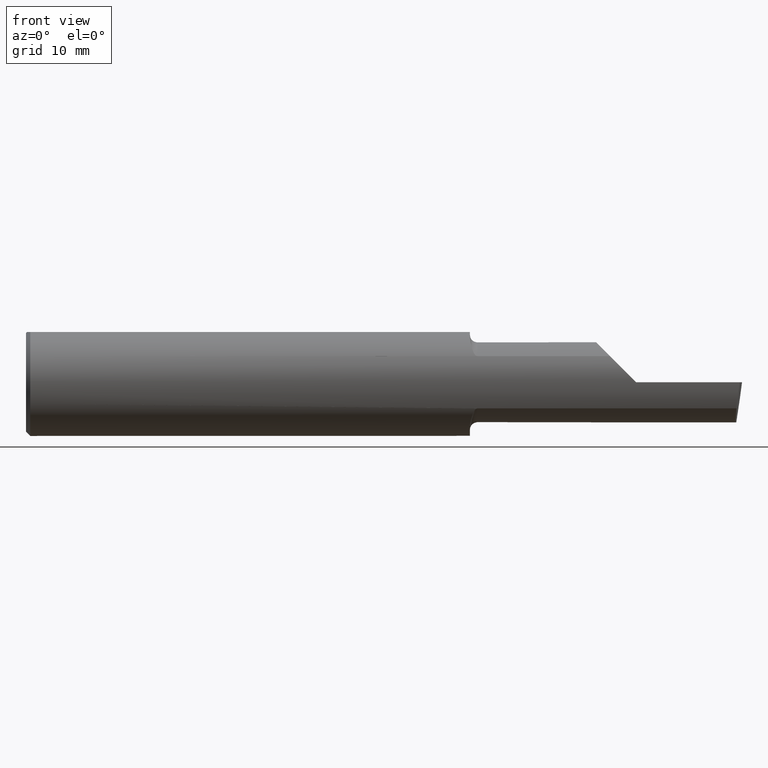
[diagram: clean part render]
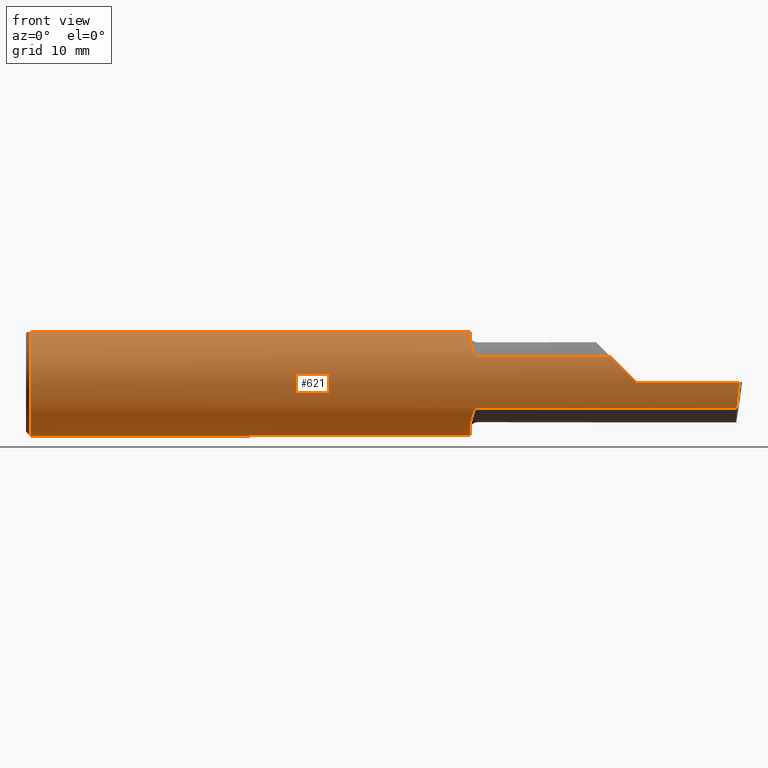
[diagram: same view with one face highlighted and labeled with its STEP entity id]
A machine part, front view. The second image highlights one B-rep face of the part: STEP entity #621.
In plain terms, the highlighted cylindrical surface (partial cylindrical patch) has radius 4.7587 mm, axis along (-1, -0, -0).
Its self-contained STEP definition (entity closure, byte-faithful):
#6 = DIRECTION ( 'NONE',  ( -1.000000000000000000, -0.000000000000000000, -0.000000000000000000 ) ) ;
#11 = CARTESIAN_POINT ( 'NONE',  ( 1.550384441902395327, -0.1115101367984837610, -0.1507946173152225067 ) ) ;
#18 = CARTESIAN_POINT ( 'NONE',  ( 2.038695632261437130, -0.1635956445993029529, 0.09130436773856188959 ) ) ;
#22 = CARTESIAN_POINT ( 'NONE',  ( 0.000000000000000000, 0.06597272163553663527, 0.1753499999999999781 ) ) ;
#24 = CARTESIAN_POINT ( 'NONE',  ( 1.550383728133730266, -0.1114837668894149980, 0.1508119329971097933 ) ) ;
#32 = CIRCLE ( 'NONE', #151, 0.1873499999999999888 ) ;
#33 = AXIS2_PLACEMENT_3D ( 'NONE', #329, #521, #126 ) ;
#35 =( BOUNDED_CURVE ( )  B_SPLINE_CURVE ( 3, ( #502, #418, #177, #459 ),
 .UNSPECIFIED., .F., .T. ) 
 B_SPLINE_CURVE_WITH_KNOTS ( ( 4, 4 ),
 ( 0.8516985021657653698, 1.360746882515200484 ),
 .UNSPECIFIED. ) 
 CURVE ( )  GEOMETRIC_REPRESENTATION_ITEM ( )  RATIONAL_B_SPLINE_CURVE ( ( 1.000000000000000000, 0.9785221379938656705, 0.9785221379938656705, 1.000000000000000000 ) ) 
 REPRESENTATION_ITEM ( '' )  );
#37 = CARTESIAN_POINT ( 'NONE',  ( 1.563764108097883687, -0.1573043405450770260, 0.1018329020719638545 ) ) ;
#45 = CIRCLE ( 'NONE', #435, 0.1873499999999999888 ) ;
#48 = EDGE_CURVE ( 'NONE', #351, #124, #56, .T. ) ;
#51 = EDGE_CURVE ( 'NONE', #379, #128, #35, .T. ) ;
#54 = AXIS2_PLACEMENT_3D ( 'NONE', #154, #302, #626 ) ;
#56 =( BOUNDED_CURVE ( )  B_SPLINE_CURVE ( 3, ( #175, #504, #545, #224 ),
 .UNSPECIFIED., .F., .T. ) 
 B_SPLINE_CURVE_WITH_KNOTS ( ( 4, 4 ),
 ( 4.712388980384689674, 5.221437360734125122 ),
 .UNSPECIFIED. ) 
 CURVE ( )  GEOMETRIC_REPRESENTATION_ITEM ( )  RATIONAL_B_SPLINE_CURVE ( ( 1.000000000000000000, 0.9785221379938656705, 0.9785221379938656705, 1.000000000000000000 ) ) 
 REPRESENTATION_ITEM ( '' )  );
#63 = CARTESIAN_POINT ( 'NONE',  ( 1.553041727949557638, -0.1311116946065050415, -0.1340922927843371804 ) ) ;
#67 = DIRECTION ( 'NONE',  ( 0.000000000000000000, 1.000000000000000000, 0.000000000000000000 ) ) ;
#69 = CARTESIAN_POINT ( 'NONE',  ( 1.567975941902154391, -0.1612443294219079171, -0.09540922431498241596 ) ) ;
#79 = ORIENTED_EDGE ( 'NONE', *, *, #451, .T. ) ;
#80 = CARTESIAN_POINT ( 'NONE',  ( 1.570903862568969078, -0.1628809688430619407, 0.09258733509388515637 ) ) ;
#82 = EDGE_CURVE ( 'NONE', #374, #334, #455, .T. ) ;
#87 = CARTESIAN_POINT ( 'NONE',  ( 1.574999999999999956, -0.1635956445993029529, -0.09130436773856180632 ) ) ;
#92 = EDGE_CURVE ( 'NONE', #244, #334, #32, .T. ) ;
#101 = CARTESIAN_POINT ( 'NONE',  ( 1.574999999999999956, -0.1635956445993027031, 0.09130436773856204224 ) ) ;
#108 = LINE ( 'NONE', #454, #315 ) ;
#109 = EDGE_CURVE ( 'NONE', #514, #234, #462, .T. ) ;
#111 = CARTESIAN_POINT ( 'NONE',  ( 1.563743174082349752, -0.1572750258711007043, -0.1018777902325216089 ) ) ;
#118 = CARTESIAN_POINT ( 'NONE',  ( 1.572779935319434719, -0.1635956445993029529, -0.09130436773856194510 ) ) ;
#120 = CARTESIAN_POINT ( 'NONE',  ( 1.550000000000000044, -0.09715400696864107122, 0.1601908905959925078 ) ) ;
#122 = CARTESIAN_POINT ( 'NONE',  ( 0.01499999999999999424, 0.000000000000000000, 0.000000000000000000 ) ) ;
#124 = VERTEX_POINT ( 'NONE', #18 ) ;
#126 = DIRECTION ( 'NONE',  ( 0.000000000000000000, 0.000000000000000000, 1.000000000000000000 ) ) ;
#127 = CARTESIAN_POINT ( 'NONE',  ( 1.550000000000000044, -0.09715400696864107122, 0.1601908905959925078 ) ) ;
#128 = VERTEX_POINT ( 'NONE', #308 ) ;
#132 = EDGE_CURVE ( 'NONE', #514, #148, #478, .T. ) ;
#135 = CARTESIAN_POINT ( 'NONE',  ( 1.562204638458737138, -0.1550630761760522502, 0.1052254855377565412 ) ) ;
#148 = VERTEX_POINT ( 'NONE', #120 ) ;
#151 = AXIS2_PLACEMENT_3D ( 'NONE', #270, #264, #409 ) ;
#154 = CARTESIAN_POINT ( 'NONE',  ( 0.01499999999999999424, 0.000000000000000000, 0.000000000000000000 ) ) ;
#157 = ORIENTED_EDGE ( 'NONE', *, *, #132, .F. ) ;
#169 = CARTESIAN_POINT ( 'NONE',  ( 1.550000000000000044, -0.06597272163553659363, 0.1753499999999999781 ) ) ;
#173 = DIRECTION ( 'NONE',  ( 1.000000000000000000, 6.829619984160658046E-18, 0.000000000000000000 ) ) ;
#175 = CARTESIAN_POINT ( 'NONE',  ( 2.129999999999999893, -0.1873499999999999888, 1.065442715258197396E-16 ) ) ;
#177 = CARTESIAN_POINT ( 'NONE',  ( 2.487725449370724817, -0.1873500000000000443, -0.03213820089768505694 ) ) ;
#185 = ORIENTED_EDGE ( 'NONE', *, *, #617, .F. ) ;
#203 = ORIENTED_EDGE ( 'NONE', *, *, #82, .T. ) ;
#214 = CARTESIAN_POINT ( 'NONE',  ( 1.550000000000000044, -0.1045082199249679489, -0.1557306416133594495 ) ) ;
#224 = CARTESIAN_POINT ( 'NONE',  ( 2.038695632261437130, -0.1635956445993029529, 0.09130436773856188959 ) ) ;
#225 = VECTOR ( 'NONE', #596, 39.37007874015748143 ) ;
#231 = ORIENTED_EDGE ( 'NONE', *, *, #48, .T. ) ;
#233 = CARTESIAN_POINT ( 'NONE',  ( 1.551891754936544743, -0.1247344934163565761, 0.1400506178720502815 ) ) ;
#234 = VERTEX_POINT ( 'NONE', #476 ) ;
#244 = VERTEX_POINT ( 'NONE', #247 ) ;
#247 = CARTESIAN_POINT ( 'NONE',  ( 1.550000000000000044, -0.09715400696864107122, -0.1601908905959925078 ) ) ;
#257 = ORIENTED_EDGE ( 'NONE', *, *, #325, .F. ) ;
#263 = CARTESIAN_POINT ( 'NONE',  ( 1.551903396790307310, -0.1248165254919059441, -0.1399798634953948739 ) ) ;
#264 = DIRECTION ( 'NONE',  ( 1.000000000000000000, 6.829619984160658046E-18, 0.000000000000000000 ) ) ;
#270 = CARTESIAN_POINT ( 'NONE',  ( 1.550000000000000044, 0.000000000000000000, 0.000000000000000000 ) ) ;
#281 = VERTEX_POINT ( 'NONE', #87 ) ;
#287 = ORIENTED_EDGE ( 'NONE', *, *, #109, .T. ) ;
#291 = ORIENTED_EDGE ( 'NONE', *, *, #51, .T. ) ;
#293 = ORIENTED_EDGE ( 'NONE', *, *, #522, .F. ) ;
#301 = DIRECTION ( 'NONE',  ( -1.000000000000000000, -0.000000000000000000, -0.000000000000000000 ) ) ;
#302 = DIRECTION ( 'NONE',  ( -1.000000000000000000, -0.000000000000000000, -0.000000000000000000 ) ) ;
#308 = CARTESIAN_POINT ( 'NONE',  ( 2.491672876940991710, -0.1873499999999999888, 6.915950918908297591E-17 ) ) ;
#309 = CARTESIAN_POINT ( 'NONE',  ( 1.558068207442171227, -0.1478915270140208627, -0.1153063024254926960 ) ) ;
#315 = VECTOR ( 'NONE', #320, 39.37007874015748143 ) ;
#320 = DIRECTION ( 'NONE',  ( -1.000000000000000000, -6.829619984160658046E-18, -0.000000000000000000 ) ) ;
#325 = EDGE_CURVE ( 'NONE', #148, #426, #448, .T. ) ;
#329 = CARTESIAN_POINT ( 'NONE',  ( 0.000000000000000000, 0.000000000000000000, 0.000000000000000000 ) ) ;
#330 = CARTESIAN_POINT ( 'NONE',  ( 1.572800914500664504, -0.1635956445997546749, 0.09130436773775280068 ) ) ;
#334 = VERTEX_POINT ( 'NONE', #616 ) ;
#335 = FACE_OUTER_BOUND ( 'NONE', #469, .T. ) ;
#340 = CARTESIAN_POINT ( 'NONE',  ( 3.377502344341257155E-32, -0.1873499999999999610, 3.267291166268304703E-16 ) ) ;
#351 = VERTEX_POINT ( 'NONE', #449 ) ;
#353 = CARTESIAN_POINT ( 'NONE',  ( 1.562184598714913220, -0.1550322129197695409, -0.1052705638704085622 ) ) ;
#361 = CARTESIAN_POINT ( 'NONE',  ( 1.550000000000000044, -0.09715400696864107122, -0.1601908905959925078 ) ) ;
#364 = CARTESIAN_POINT ( 'NONE',  ( 1.867500000000000160, -0.1635956445993030639, 0.09130436773856169530 ) ) ;
#365 = DIRECTION ( 'NONE',  ( 1.000000000000000000, 6.829619984160658046E-18, 0.000000000000000000 ) ) ;
#374 = VERTEX_POINT ( 'NONE', #532 ) ;
#377 = VECTOR ( 'NONE', #301, 39.37007874015748143 ) ;
#378 = CARTESIAN_POINT ( 'NONE',  ( 1.556142321956750507, -0.1426151417460928550, 0.1217894822571234659 ) ) ;
#379 = VERTEX_POINT ( 'NONE', #442 ) ;
#387 = EDGE_CURVE ( 'NONE', #570, #234, #582, .T. ) ;
#406 = CARTESIAN_POINT ( 'NONE',  ( 0.000000000000000000, -0.06597272163553657975, 0.1753499999999999781 ) ) ;
#409 = DIRECTION ( 'NONE',  ( 0.000000000000000000, 1.000000000000000000, 0.000000000000000000 ) ) ;
#413 = VECTOR ( 'NONE', #602, 39.37007874015748143 ) ;
#418 = CARTESIAN_POINT ( 'NONE',  ( 2.484117089522337452, -0.1792580844883771285, -0.06324101202936134591 ) ) ;
#426 = VERTEX_POINT ( 'NONE', #101 ) ;
#432 = CARTESIAN_POINT ( 'NONE',  ( 1.568001859868117132, -0.1612625562479369223, 0.09537826053888208422 ) ) ;
#435 = AXIS2_PLACEMENT_3D ( 'NONE', #122, #6, #595 ) ;
#441 = B_SPLINE_CURVE_WITH_KNOTS ( 'NONE', 3,
 ( #588, #118, #508, #69, #601, #111, #353, #309, #503, #63, #263, #11, #214, #361 ),
 .UNSPECIFIED., .F., .F.,
 ( 4, 2, 2, 2, 2, 2, 4 ),
 ( 1.968340875534775581E-07, 0.0001667114270246267561, 0.0003332260199617000421, 0.0006662552058358466684, 0.001332313577584133416, 0.001998371949332420489, 0.002664430321080706911 ),
 .UNSPECIFIED. ) ;
#442 = CARTESIAN_POINT ( 'NONE',  ( 2.481080296960508580, -0.1635956445993030639, -0.09130436773856169530 ) ) ;
#448 = B_SPLINE_CURVE_WITH_KNOTS ( 'NONE', 3,
 ( #127, #516, #24, #233, #608, #378, #569, #135, #37, #519, #432, #80, #330, #523 ),
 .UNSPECIFIED., .F., .F.,
 ( 4, 2, 2, 2, 2, 2, 4 ),
 ( 0.0002471551878304213972, 0.0008987327522055595184, 0.001550310316580697694, 0.002201887880955836086, 0.002527676663143405607, 0.002690571054237190368, 0.002853465445330975996 ),
 .UNSPECIFIED. ) ;
#449 = CARTESIAN_POINT ( 'NONE',  ( 2.129999999999999893, -0.1873499999999999888, 1.065442715258197396E-16 ) ) ;
#451 = EDGE_CURVE ( 'NONE', #128, #351, #495, .T. ) ;
#454 = CARTESIAN_POINT ( 'NONE',  ( 1.867500000000000160, -0.1635956445993030639, -0.09130436773856169530 ) ) ;
#455 = LINE ( 'NONE', #22, #413 ) ;
#459 = CARTESIAN_POINT ( 'NONE',  ( 2.491672876940991710, -0.1873499999999999888, 6.915950918908297591E-17 ) ) ;
#462 = LINE ( 'NONE', #406, #225 ) ;
#469 = EDGE_LOOP ( 'NONE', ( #604, #291, #79, #231, #293, #257, #157, #287, #555, #607, #203, #576, #185 ) ) ;
#476 = CARTESIAN_POINT ( 'NONE',  ( 0.01499999999999997863, -0.06597272163553657975, 0.1753499999999999781 ) ) ;
#478 = CIRCLE ( 'NONE', #541, 0.1873499999999999888 ) ;
#493 = EDGE_CURVE ( 'NONE', #379, #281, #108, .T. ) ;
#495 = LINE ( 'NONE', #340, #377 ) ;
#502 = CARTESIAN_POINT ( 'NONE',  ( 2.481080296960508580, -0.1635956445993030639, -0.09130436773856169530 ) ) ;
#503 = CARTESIAN_POINT ( 'NONE',  ( 1.556145841430604637, -0.1426194794824337253, -0.1217813759115470157 ) ) ;
#504 = CARTESIAN_POINT ( 'NONE',  ( 2.097861799102314961, -0.1873500000000000165, 0.03213820089768509858 ) ) ;
#506 = CARTESIAN_POINT ( 'NONE',  ( 1.550000000000000044, 0.000000000000000000, 0.000000000000000000 ) ) ;
#508 = CARTESIAN_POINT ( 'NONE',  ( 1.570881499230870171, -0.1628722075910989664, -0.09260290410947892570 ) ) ;
#514 = VERTEX_POINT ( 'NONE', #169 ) ;
#516 = CARTESIAN_POINT ( 'NONE',  ( 1.549999999999999822, -0.1045012500212952056, 0.1557348687830036327 ) ) ;
#519 = CARTESIAN_POINT ( 'NONE',  ( 1.566855994529494422, -0.1603175578889967923, 0.09696363432848481567 ) ) ;
#521 = DIRECTION ( 'NONE',  ( -1.000000000000000000, -0.000000000000000000, -0.000000000000000000 ) ) ;
#522 = EDGE_CURVE ( 'NONE', #426, #124, #556, .T. ) ;
#523 = CARTESIAN_POINT ( 'NONE',  ( 1.574999999999999956, -0.1635956445993027031, 0.09130436773856204224 ) ) ;
#532 = CARTESIAN_POINT ( 'NONE',  ( 0.01499999999999999424, 0.06597272163553663527, 0.1753499999999999781 ) ) ;
#541 = AXIS2_PLACEMENT_3D ( 'NONE', #506, #365, #67 ) ;
#545 = CARTESIAN_POINT ( 'NONE',  ( 2.066758987970638284, -0.1792580844883770730, 0.06324101202936138755 ) ) ;
#551 = CARTESIAN_POINT ( 'NONE',  ( 0.01499999999999999424, 0.000000000000000000, -0.1873499999999999888 ) ) ;
#555 = ORIENTED_EDGE ( 'NONE', *, *, #387, .F. ) ;
#556 = LINE ( 'NONE', #364, #573 ) ;
#564 = EDGE_CURVE ( 'NONE', #374, #570, #45, .T. ) ;
#569 = CARTESIAN_POINT ( 'NONE',  ( 1.558072954143139732, -0.1479074971576196940, 0.1152872342625233804 ) ) ;
#570 = VERTEX_POINT ( 'NONE', #551 ) ;
#573 = VECTOR ( 'NONE', #173, 39.37007874015748143 ) ;
#576 = ORIENTED_EDGE ( 'NONE', *, *, #92, .F. ) ;
#582 = CIRCLE ( 'NONE', #54, 0.1873499999999999888 ) ;
#588 = CARTESIAN_POINT ( 'NONE',  ( 1.574999999999999956, -0.1635956445993029529, -0.09130436773856180632 ) ) ;
#595 = DIRECTION ( 'NONE',  ( 0.000000000000000000, 0.000000000000000000, 1.000000000000000000 ) ) ;
#596 = DIRECTION ( 'NONE',  ( -1.000000000000000000, -0.000000000000000000, -0.000000000000000000 ) ) ;
#601 = CARTESIAN_POINT ( 'NONE',  ( 1.566814909379089071, -0.1602818635245155943, -0.09702252612905327978 ) ) ;
#602 = DIRECTION ( 'NONE',  ( 1.000000000000000000, 0.000000000000000000, 0.000000000000000000 ) ) ;
#604 = ORIENTED_EDGE ( 'NONE', *, *, #493, .F. ) ;
#607 = ORIENTED_EDGE ( 'NONE', *, *, #564, .F. ) ;
#608 = CARTESIAN_POINT ( 'NONE',  ( 1.553025912205683312, -0.1310442973014112888, 0.1341609063345044761 ) ) ;
#611 = CYLINDRICAL_SURFACE ( 'NONE', #33, 0.1873499999999999888 ) ;
#616 = CARTESIAN_POINT ( 'NONE',  ( 1.550000000000000044, 0.06597272163553663527, 0.1753499999999999781 ) ) ;
#617 = EDGE_CURVE ( 'NONE', #281, #244, #441, .T. ) ;
#621 = ADVANCED_FACE ( 'NONE', ( #335 ), #611, .T. ) ;
#626 = DIRECTION ( 'NONE',  ( 0.000000000000000000, 0.000000000000000000, 1.000000000000000000 ) ) ;